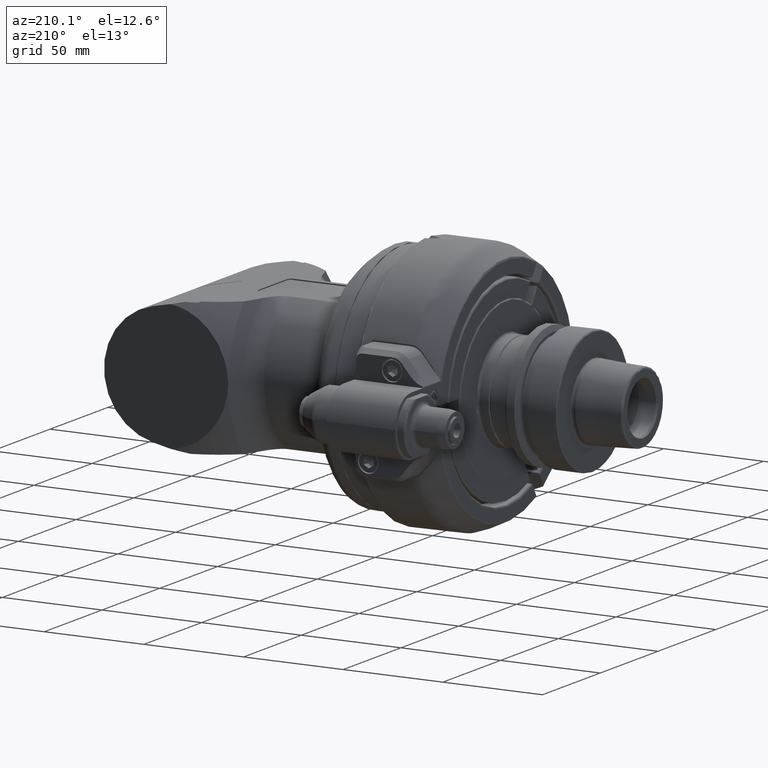
[diagram: clean part render]
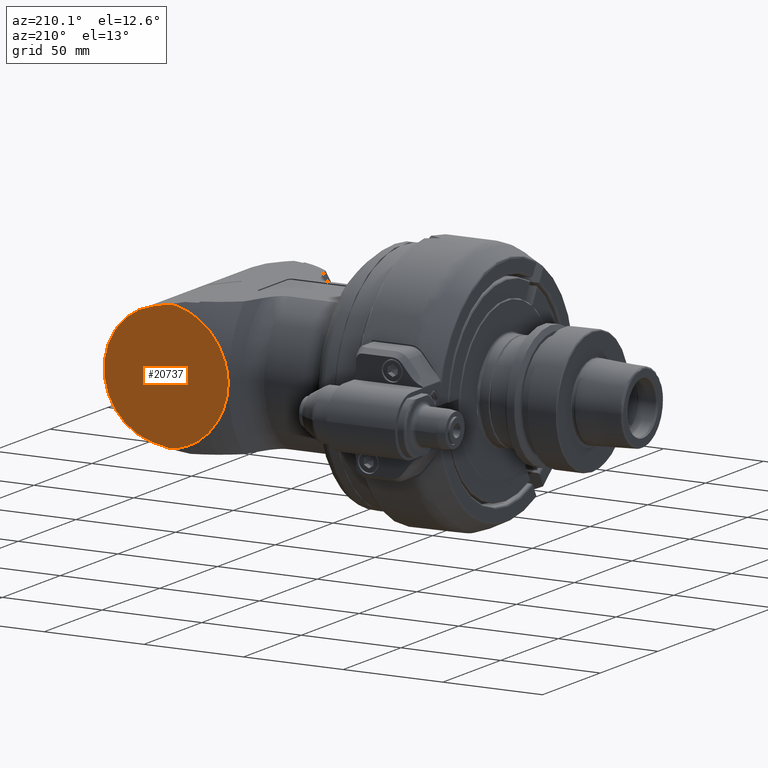
[diagram: same view with one face highlighted and labeled with its STEP entity id]
A machine part, auxiliary view. The second image highlights one B-rep face of the part: STEP entity #20737.
In plain terms, the highlighted planar face has unit normal (0, -1, 0).
Its self-contained STEP definition (entity closure, byte-faithful):
#312=B_SPLINE_CURVE_WITH_KNOTS('',3,(#31280,#31281,#31282,#31283,#31284,
#31285,#31286,#31287,#31288,#31289,#31290,#31291,#31292,#31293,#31294,#31295,
#31296,#31297,#31298,#31299,#31300,#31301,#31302,#31303,#31304),
 .UNSPECIFIED.,.F.,.F.,(4,3,3,3,3,3,3,3,4),(0.,0.992242057424706,1.98397289565595,
2.97519801507522,3.9659491329241,4.95628439029028,5.94628838695565,6.93607205721738,
7.92577241366975),.UNSPECIFIED.);
#315=B_SPLINE_CURVE_WITH_KNOTS('',3,(#31339,#31340,#31341,#31342,#31343,
#31344,#31345,#31346,#31347,#31348,#31349,#31350,#31351),.UNSPECIFIED.,
 .F.,.F.,(4,3,3,3,4),(0.,1.41641097025634,2.83277460562305,4.24912609322701,
5.66549765845377),.UNSPECIFIED.);
#320=B_SPLINE_CURVE_WITH_KNOTS('',3,(#31926,#31927,#31928,#31929,#31930,
#31931,#31932,#31933,#31934,#31935,#31936,#31937,#31938),.UNSPECIFIED.,
 .F.,.F.,(4,3,3,3,4),(0.,1.31722049980394,2.63442441966763,3.95161464611599,
5.26879464015376),.UNSPECIFIED.);
#324=B_SPLINE_CURVE_WITH_KNOTS('',3,(#32189,#32190,#32191,#32192,#32193,
#32194,#32195,#32196,#32197,#32198,#32199,#32200,#32201,#32202,#32203,#32204,
#32205,#32206,#32207,#32208,#32209,#32210,#32211,#32212,#32213,#32214,#32215,
#32216,#32217,#32218,#32219,#32220,#32221,#32222,#32223,#32224,#32225,#32226,
#32227,#32228,#32229,#32230,#32231,#32232,#32233,#32234,#32235,#32236,#32237,
#32238,#32239,#32240,#32241,#32242,#32243,#32244,#32245,#32246,#32247,#32248,
#32249,#32250,#32251,#32252,#32253,#32254,#32255,#32256,#32257,#32258),
 .UNSPECIFIED.,.F.,.F.,(4,3,3,3,3,3,3,3,3,3,3,3,3,3,3,3,3,3,3,3,3,3,3,4),
(0.,1.12416668223494,2.24736612673669,3.36951984996731,4.49064883436384,
5.61087896914794,6.73046692358963,7.85231083400751,8.97753050032318,10.1050528240918,
10.6693555182885,11.2338556627849,11.7984367940402,12.3629882135461,12.9274056815949,
13.4915921509215,14.0554585522845,14.6189246448477,15.1819199444126,15.7443847430724,
16.3062712319338,16.867544738392,17.4281850863751,17.9881880853116),
 .UNSPECIFIED.);
#328=B_SPLINE_CURVE_WITH_KNOTS('',3,(#32454,#32455,#32456,#32457,#32458,
#32459,#32460,#32461,#32462,#32463,#32464,#32465,#32466),.UNSPECIFIED.,
 .F.,.F.,(4,3,3,3,4),(0.,1.31721500405777,2.63441581820572,3.95160744192858,
5.26879464031165),.UNSPECIFIED.);
#336=B_SPLINE_CURVE_WITH_KNOTS('',3,(#32873,#32874,#32875,#32876,#32877,
#32878,#32879,#32880,#32881,#32882,#32883,#32884,#32885,#32886,#32887,#32888),
 .UNSPECIFIED.,.F.,.F.,(4,3,3,3,3,4),(0.,0.799060704593151,1.59807347417503,
3.19605656265595,4.79413502925788,6.39246658318003),.UNSPECIFIED.);
#337=B_SPLINE_CURVE_WITH_KNOTS('',3,(#32890,#32891,#32892,#32893,#32894,
#32895,#32896,#32897,#32898,#32899,#32900,#32901,#32902,#32903,#32904,#32905,
#32906,#32907,#32908,#32909,#32910,#32911,#32912,#32913,#32914),
 .UNSPECIFIED.,.F.,.F.,(4,3,3,3,3,3,3,3,4),(0.,0.989700356452083,1.97948402671316,
2.96948802337813,3.95982328074394,4.95057439859277,5.94179951801207,6.93353035624271,
7.92577241366874),.UNSPECIFIED.);
#338=B_SPLINE_CURVE_WITH_KNOTS('',3,(#32915,#32916,#32917,#32918,#32919,
#32920,#32921,#32922,#32923,#32924,#32925,#32926,#32927,#32928,#32929,#32930,
#32931,#32932,#32933,#32934,#32935,#32936,#32937,#32938,#32939,#32940,#32941,
#32942,#32943,#32944,#32945,#32946,#32947,#32948,#32949,#32950,#32951,#32952,
#32953,#32954,#32955,#32956,#32957,#32958,#32959,#32960,#32961,#32962,#32963,
#32964,#32965,#32966,#32967,#32968,#32969,#32970,#32971,#32972,#32973,#32974,
#32975,#32976,#32977,#32978,#32979,#32980,#32981,#32982,#32983,#32984),
 .UNSPECIFIED.,.F.,.F.,(4,3,3,3,3,3,3,3,3,3,3,3,3,3,3,3,3,3,3,3,3,3,3,4),
(0.,0.560002998936497,1.12064334691953,1.68191685337738,2.24380334223844,
2.80626814089812,3.36926344046314,3.93272953302629,4.49659593438952,5.06078240371644,
5.62519987176505,6.18975129127075,6.75433242252607,7.31883256702203,7.88313526121858,
9.01065758498716,10.1358772513027,11.2577211617207,12.3773091161624,13.4975392509463,
14.6186682353428,15.7408219585734,16.8640214030752,17.9881880853102),
 .UNSPECIFIED.);
#339=B_SPLINE_CURVE_WITH_KNOTS('',3,(#32986,#32987,#32988,#32989,#32990,
#32991,#32992,#32993,#32994,#32995,#32996,#32997,#32998,#32999,#33000,#33001),
 .UNSPECIFIED.,.F.,.F.,(4,3,3,3,3,4),(0.,1.59833155392217,3.19641002052498,
4.7943931090059,5.59340587858651,6.39246658318078),.UNSPECIFIED.);
#340=B_SPLINE_CURVE_WITH_KNOTS('',3,(#33002,#33003,#33004,#33005,#33006,
#33007,#33008,#33009,#33010,#33011,#33012,#33013,#33014),.UNSPECIFIED.,
 .F.,.F.,(4,3,3,3,4),(0.,1.41637156522673,2.83272305283394,4.24908668820071,
5.66549765845705),.UNSPECIFIED.);
#648=CIRCLE('',#21975,1824.94496184479);
#649=CIRCLE('',#21976,1824.94496190464);
#650=CIRCLE('',#21977,31.);
#2433=FACE_OUTER_BOUND('',#3330,.T.);
#3330=EDGE_LOOP('',(#13442,#13443,#13444,#13445,#13446,#13447,#13448,#13449,
#13450,#13451,#13452,#13453,#13454,#13455,#13456));
#4342=LINE('',#32870,#5837);
#4343=LINE('',#33018,#5838);
#5837=VECTOR('',#24719,1.);
#5838=VECTOR('',#24724,1.);
#7282=VERTEX_POINT('',#31277);
#7283=VERTEX_POINT('',#31279);
#7287=VERTEX_POINT('',#31336);
#7288=VERTEX_POINT('',#31338);
#7300=VERTEX_POINT('',#31923);
#7301=VERTEX_POINT('',#31925);
#7353=VERTEX_POINT('',#32047);
#7371=VERTEX_POINT('',#32453);
#7392=VERTEX_POINT('',#32868);
#7393=VERTEX_POINT('',#32869);
#7394=VERTEX_POINT('',#32872);
#7395=VERTEX_POINT('',#32889);
#7396=VERTEX_POINT('',#32985);
#7397=VERTEX_POINT('',#33015);
#7398=VERTEX_POINT('',#33017);
#9884=EDGE_CURVE('',#7282,#7283,#312,.T.);
#9889=EDGE_CURVE('',#7287,#7288,#315,.T.);
#9902=EDGE_CURVE('',#7300,#7301,#320,.T.);
#9962=EDGE_CURVE('',#7283,#7353,#324,.T.);
#9978=EDGE_CURVE('',#7288,#7371,#328,.T.);
#10004=EDGE_CURVE('',#7392,#7393,#4342,.T.);
#10005=EDGE_CURVE('',#7371,#7393,#648,.T.);
#10006=EDGE_CURVE('',#7394,#7287,#336,.T.);
#10007=EDGE_CURVE('',#7395,#7394,#337,.T.);
#10008=EDGE_CURVE('',#7353,#7395,#338,.T.);
#10009=EDGE_CURVE('',#7396,#7282,#339,.T.);
#10010=EDGE_CURVE('',#7301,#7396,#340,.T.);
#10011=EDGE_CURVE('',#7397,#7300,#649,.T.);
#10012=EDGE_CURVE('',#7397,#7398,#4343,.T.);
#10013=EDGE_CURVE('',#7398,#7392,#650,.T.);
#13442=ORIENTED_EDGE('',*,*,#10004,.T.);
#13443=ORIENTED_EDGE('',*,*,#10005,.F.);
#13444=ORIENTED_EDGE('',*,*,#9978,.F.);
#13445=ORIENTED_EDGE('',*,*,#9889,.F.);
#13446=ORIENTED_EDGE('',*,*,#10006,.F.);
#13447=ORIENTED_EDGE('',*,*,#10007,.F.);
#13448=ORIENTED_EDGE('',*,*,#10008,.F.);
#13449=ORIENTED_EDGE('',*,*,#9962,.F.);
#13450=ORIENTED_EDGE('',*,*,#9884,.F.);
#13451=ORIENTED_EDGE('',*,*,#10009,.F.);
#13452=ORIENTED_EDGE('',*,*,#10010,.F.);
#13453=ORIENTED_EDGE('',*,*,#9902,.F.);
#13454=ORIENTED_EDGE('',*,*,#10011,.F.);
#13455=ORIENTED_EDGE('',*,*,#10012,.T.);
#13456=ORIENTED_EDGE('',*,*,#10013,.T.);
#20132=PLANE('',#21974);
#20737=ADVANCED_FACE('',(#2433),#20132,.F.);
#21974=AXIS2_PLACEMENT_3D('',#32867,#24717,#24718);
#21975=AXIS2_PLACEMENT_3D('',#32871,#24720,#24721);
#21976=AXIS2_PLACEMENT_3D('',#33016,#24722,#24723);
#21977=AXIS2_PLACEMENT_3D('',#33019,#24725,#24726);
#24717=DIRECTION('center_axis',(1.68128734625305E-15,-1.,0.));
#24718=DIRECTION('ref_axis',(-1.,-1.68128734625305E-15,0.));
#24719=DIRECTION('',(-0.978147600733806,-1.63643209284756E-15,-0.207911690817759));
#24720=DIRECTION('center_axis',(-3.63308687955933E-12,-1.,-2.2626754111478E-11));
#24721=DIRECTION('ref_axis',(-0.157420699239301,2.29165606215824E-11,-0.987531631620481));
#24722=DIRECTION('center_axis',(3.63308687970333E-12,-1.,-2.26267541123768E-11));
#24723=DIRECTION('ref_axis',(-0.15964979394447,-2.29165606208308E-11,0.987173714851387));
#24724=DIRECTION('',(0.978147600733806,1.66648140541229E-15,-0.207911690817759));
#24725=DIRECTION('center_axis',(0.,1.,0.));
#24726=DIRECTION('ref_axis',(1.,0.,0.));
#31277=CARTESIAN_POINT('',(256.759249423327,49.0000000000001,23.2082513592934));
#31279=CARTESIAN_POINT('',(251.759249422787,49.0000000000001,17.0656076727776));
#31280=CARTESIAN_POINT('Ctrl Pts',(256.759249422705,49.0000000000001,23.2082513587644));
#31281=CARTESIAN_POINT('Ctrl Pts',(256.535527466949,49.0000000000001,22.9645350740794));
#31282=CARTESIAN_POINT('Ctrl Pts',(256.31342267198,49.0000000000001,22.7194457408125));
#31283=CARTESIAN_POINT('Ctrl Pts',(256.093039643019,49.0000000000001,22.4729319585992));
#31284=CARTESIAN_POINT('Ctrl Pts',(255.872656626423,49.0000000000001,22.2264181902188));
#31285=CARTESIAN_POINT('Ctrl Pts',(255.653995238817,49.0000000000001,21.9784798882552));
#31286=CARTESIAN_POINT('Ctrl Pts',(255.437165817947,49.0000000000001,21.7290611347212));
#31287=CARTESIAN_POINT('Ctrl Pts',(255.220336422401,49.0000000000001,21.4796424103183));
#31288=CARTESIAN_POINT('Ctrl Pts',(255.005338837701,49.0000000000001,21.2287431295281));
#31289=CARTESIAN_POINT('Ctrl Pts',(254.792290093706,49.0000000000001,20.9763028795739));
#31290=CARTESIAN_POINT('Ctrl Pts',(254.579241390291,49.0000000000001,20.7238626777024));
#31291=CARTESIAN_POINT('Ctrl Pts',(254.368141351454,49.0000000000001,20.4698813780032));
#31292=CARTESIAN_POINT('Ctrl Pts',(254.159114775289,49.0000000000001,20.2142941856369));
#31293=CARTESIAN_POINT('Ctrl Pts',(253.950088257324,49.0000000000001,19.9587070644338));
#31294=CARTESIAN_POINT('Ctrl Pts',(253.743135004584,49.0000000000001,19.7015138939322));
#31295=CARTESIAN_POINT('Ctrl Pts',(253.538388775431,49.0000000000001,19.4426457214033));
#31296=CARTESIAN_POINT('Ctrl Pts',(253.333642624469,49.0000000000001,19.1837776477357));
#31297=CARTESIAN_POINT('Ctrl Pts',(253.131103277739,49.0000000000001,18.9232343829439));
#31298=CARTESIAN_POINT('Ctrl Pts',(252.930914756033,49.0000000000001,18.6609431766895));
#31299=CARTESIAN_POINT('Ctrl Pts',(252.73072633482,49.0000000000001,18.3986521021031));
#31300=CARTESIAN_POINT('Ctrl Pts',(252.532888497481,49.0000000000001,18.1346128596879));
#31301=CARTESIAN_POINT('Ctrl Pts',(252.337556926708,49.0000000000001,17.8687494255035));
#31302=CARTESIAN_POINT('Ctrl Pts',(252.142225480837,49.0000000000001,17.6028861613213));
#31303=CARTESIAN_POINT('Ctrl Pts',(251.94940003978,49.0000000000001,17.3351984369177));
#31304=CARTESIAN_POINT('Ctrl Pts',(251.759249422705,49.0000000000001,17.0656076726333));
#31336=CARTESIAN_POINT('',(261.759249422704,49.0000000000001,-27.189579349877));
#31338=CARTESIAN_POINT('',(266.759249424754,48.9999999998453,-29.8533396840817));
#31339=CARTESIAN_POINT('Ctrl Pts',(261.759249422705,49.0000000000001,-27.1895793498776));
#31340=CARTESIAN_POINT('Ctrl Pts',(262.172561089978,49.0000000000001,-27.4178296446101));
#31341=CARTESIAN_POINT('Ctrl Pts',(262.586789705108,49.0000000000001,-27.6443898025845));
#31342=CARTESIAN_POINT('Ctrl Pts',(263.00187297803,49.0000000000001,-27.8693559998758));
#31343=CARTESIAN_POINT('Ctrl Pts',(263.41695631773,49.0000000000001,-28.0943222333597));
#31344=CARTESIAN_POINT('Ctrl Pts',(263.832894458912,49.0000000000001,-28.317694493084));
#31345=CARTESIAN_POINT('Ctrl Pts',(264.249631646423,49.0000000000001,-28.5395611896263));
#31346=CARTESIAN_POINT('Ctrl Pts',(264.666368889143,49.0000000000001,-28.7614279155613));
#31347=CARTESIAN_POINT('Ctrl Pts',(265.083905300129,49.0000000000001,-28.9817890649466));
#31348=CARTESIAN_POINT('Ctrl Pts',(265.502190755154,49.0000000000001,-29.2007260558741));
#31349=CARTESIAN_POINT('Ctrl Pts',(265.9204762553,49.0000000000001,-29.4196630704191));
#31350=CARTESIAN_POINT('Ctrl Pts',(266.339510903322,49.0000000000001,-29.6371759131839));
#31351=CARTESIAN_POINT('Ctrl Pts',(266.759249428852,49.0000000000001,-29.8533396859382));
#31923=CARTESIAN_POINT('',(271.759249422666,48.9999999999671,31.5146293911545));
#31925=CARTESIAN_POINT('',(266.759249424754,48.999999999845,29.8533396840821));
#31926=CARTESIAN_POINT('Ctrl Pts',(271.759249422705,49.0000000000001,31.5146293910364));
#31927=CARTESIAN_POINT('Ctrl Pts',(271.341791488782,49.0000000000001,31.3785519289655));
#31928=CARTESIAN_POINT('Ctrl Pts',(270.924520221837,49.0000000000001,31.2419119603042));
#31929=CARTESIAN_POINT('Ctrl Pts',(270.507443701776,49.0000000000001,31.1046889211353));
#31930=CARTESIAN_POINT('Ctrl Pts',(270.090367184974,49.0000000000001,30.9674658830388));
#31931=CARTESIAN_POINT('Ctrl Pts',(269.673485408707,49.0000000000001,30.8296597794189));
#31932=CARTESIAN_POINT('Ctrl Pts',(269.256806945087,49.0000000000001,30.6912488502462));
#31933=CARTESIAN_POINT('Ctrl Pts',(268.840128485419,49.0000000000001,30.5528379223864));
#31934=CARTESIAN_POINT('Ctrl Pts',(268.423653331336,48.9999999999955,30.413822174462));
#31935=CARTESIAN_POINT('Ctrl Pts',(268.007390603605,48.9999999999955,30.2741785575436));
#31936=CARTESIAN_POINT('Ctrl Pts',(267.591127880655,48.9999999999955,30.1345349422288));
#31937=CARTESIAN_POINT('Ctrl Pts',(267.175077576126,49.0000000000001,29.9942634639148));
#31938=CARTESIAN_POINT('Ctrl Pts',(266.759249422705,49.0000000000001,29.8533396827725));
#32047=CARTESIAN_POINT('',(246.759249422705,49.0000000000001,2.18272629132729E-13));
#32189=CARTESIAN_POINT('Ctrl Pts',(251.759249422705,49.0000000000001,17.0656076726333));
#32190=CARTESIAN_POINT('Ctrl Pts',(251.573694570769,49.0000000000001,16.7398861844092));
#32191=CARTESIAN_POINT('Ctrl Pts',(251.391782378763,49.0000000000001,16.4122433251356));
#32192=CARTESIAN_POINT('Ctrl Pts',(251.213770994501,49.0000000000001,16.0826782143429));
#32193=CARTESIAN_POINT('Ctrl Pts',(251.035759621133,49.0000000000001,15.7531131237168));
#32194=CARTESIAN_POINT('Ctrl Pts',(250.861648982009,49.0000000000001,15.4216256175999));
#32195=CARTESIAN_POINT('Ctrl Pts',(250.691701892405,49.0000000000001,15.0882130050983));
#32196=CARTESIAN_POINT('Ctrl Pts',(250.521754822582,49.0000000000001,14.7548004314025));
#32197=CARTESIAN_POINT('Ctrl Pts',(250.355971240007,49.0000000000001,14.4194625767329));
#32198=CARTESIAN_POINT('Ctrl Pts',(250.194618699517,49.0000000000001,14.0821956955995));
#32199=CARTESIAN_POINT('Ctrl Pts',(250.033266187459,49.0000000000001,13.7449288738984));
#32200=CARTESIAN_POINT('Ctrl Pts',(249.876344672522,49.0000000000001,13.4057328464321));
#32201=CARTESIAN_POINT('Ctrl Pts',(249.724126358761,49.0000000000001,13.0646036986297));
#32202=CARTESIAN_POINT('Ctrl Pts',(249.571908081254,49.0000000000001,12.7234746320761));
#32203=CARTESIAN_POINT('Ctrl Pts',(249.424392984086,49.0000000000001,12.3804122701317));
#32204=CARTESIAN_POINT('Ctrl Pts',(249.281857612149,49.0000000000001,12.0354135248791));
#32205=CARTESIAN_POINT('Ctrl Pts',(249.139318873109,49.0000000000001,11.6904066297488));
#32206=CARTESIAN_POINT('Ctrl Pts',(249.00177380815,49.0000000000001,11.3434990532662));
#32207=CARTESIAN_POINT('Ctrl Pts',(248.869463843851,49.0000000000001,10.9945875615771));
#32208=CARTESIAN_POINT('Ctrl Pts',(248.737115854198,49.0000000000001,10.6455757941211));
#32209=CARTESIAN_POINT('Ctrl Pts',(248.609749909168,48.9999999999959,10.2938742373527));
#32210=CARTESIAN_POINT('Ctrl Pts',(248.487798704334,48.9999999999959,9.9397104280545));
#32211=CARTESIAN_POINT('Ctrl Pts',(248.365847760101,48.9999999999959,9.58554737557985));
#32212=CARTESIAN_POINT('Ctrl Pts',(248.249312516417,49.0000000000001,9.22892317924162));
#32213=CARTESIAN_POINT('Ctrl Pts',(248.138605432078,49.0000000000001,8.87009700466617));
#32214=CARTESIAN_POINT('Ctrl Pts',(248.027898543119,49.0000000000001,8.51127146335945));
#32215=CARTESIAN_POINT('Ctrl Pts',(247.923020867411,49.0000000000001,8.1502454844452));
#32216=CARTESIAN_POINT('Ctrl Pts',(247.824354909074,49.0000000000001,7.78730800389589));
#32217=CARTESIAN_POINT('Ctrl Pts',(247.77502200759,49.0000000000001,7.60583954937813));
#32218=CARTESIAN_POINT('Ctrl Pts',(247.72724158005,49.0000000000001,7.42389395040086));
#32219=CARTESIAN_POINT('Ctrl Pts',(247.6810578882,49.0000000000001,7.24151002579758));
#32220=CARTESIAN_POINT('Ctrl Pts',(247.634874203224,49.0000000000001,7.05912612834544));
#32221=CARTESIAN_POINT('Ctrl Pts',(247.590287288387,49.0000000000001,6.87630397679033));
#32222=CARTESIAN_POINT('Ctrl Pts',(247.547338621794,49.0000000000001,6.69308391525984));
#32223=CARTESIAN_POINT('Ctrl Pts',(247.504389960058,49.0000000000001,6.50986387444197));
#32224=CARTESIAN_POINT('Ctrl Pts',(247.463079580359,49.0000000000001,6.32624600330171));
#32225=CARTESIAN_POINT('Ctrl Pts',(247.423445889854,49.0000000000001,6.14227199069927));
#32226=CARTESIAN_POINT('Ctrl Pts',(247.383812202254,49.0000000000001,5.95829799158183));
#32227=CARTESIAN_POINT('Ctrl Pts',(247.345855236309,49.0000000000001,5.77396793869538));
#32228=CARTESIAN_POINT('Ctrl Pts',(247.30961005908,49.0000000000001,5.58932465000286));
#32229=CARTESIAN_POINT('Ctrl Pts',(247.273364882913,49.0000000000001,5.40468136672388));
#32230=CARTESIAN_POINT('Ctrl Pts',(247.238831525873,49.0000000000001,5.21972494308868));
#32231=CARTESIAN_POINT('Ctrl Pts',(247.206041470326,49.0000000000001,5.03449907371436));
#32232=CARTESIAN_POINT('Ctrl Pts',(247.173251414151,49.0000000000001,4.84927320079247));
#32233=CARTESIAN_POINT('Ctrl Pts',(247.142204687088,49.0000000000001,4.66377798484938));
#32234=CARTESIAN_POINT('Ctrl Pts',(247.112928973486,49.0000000000001,4.47805770681237));
#32235=CARTESIAN_POINT('Ctrl Pts',(247.083653257767,49.0000000000001,4.29233741534087));
#32236=CARTESIAN_POINT('Ctrl Pts',(247.056148579593,49.0000000000001,4.10639217105215));
#32237=CARTESIAN_POINT('Ctrl Pts',(247.030438650118,49.0000000000001,3.9202665126592));
#32238=CARTESIAN_POINT('Ctrl Pts',(247.004728717279,49.0000000000001,3.73414082990551));
#32239=CARTESIAN_POINT('Ctrl Pts',(246.980813552987,48.9999999999974,3.54783484812965));
#32240=CARTESIAN_POINT('Ctrl Pts',(246.958712764993,48.9999999999974,3.36139299744608));
#32241=CARTESIAN_POINT('Ctrl Pts',(246.936611972729,48.9999999999974,3.17495111073414));
#32242=CARTESIAN_POINT('Ctrl Pts',(246.916325571705,48.9999999999991,2.98837347459569));
#32243=CARTESIAN_POINT('Ctrl Pts',(246.897868987628,48.9999999999991,2.80170400903912));
#32244=CARTESIAN_POINT('Ctrl Pts',(246.879412398729,48.9999999999991,2.61503449470562));
#32245=CARTESIAN_POINT('Ctrl Pts',(246.862785636254,48.9999999999998,2.42827327344653));
#32246=CARTESIAN_POINT('Ctrl Pts',(246.847999922801,48.9999999999998,2.24146331942315));
#32247=CARTESIAN_POINT('Ctrl Pts',(246.833214204408,48.9999999999998,2.05465330300065));
#32248=CARTESIAN_POINT('Ctrl Pts',(246.820269538595,49.,1.86779467788677));
#32249=CARTESIAN_POINT('Ctrl Pts',(246.809172986614,49.,1.6809290072542));
#32250=CARTESIAN_POINT('Ctrl Pts',(246.798076430067,49.,1.49406325976114));
#32251=CARTESIAN_POINT('Ctrl Pts',(246.788827984695,49.0000000000001,1.30719059071518));
#32252=CARTESIAN_POINT('Ctrl Pts',(246.781430659261,49.0000000000001,1.12035066217592));
#32253=CARTESIAN_POINT('Ctrl Pts',(246.774033330181,49.0000000000001,0.933510641561858));
#32254=CARTESIAN_POINT('Ctrl Pts',(246.768487112033,49.0000000000001,0.746703483518659));
#32255=CARTESIAN_POINT('Ctrl Pts',(246.764791140059,49.0000000000001,0.559966439572724));
#32256=CARTESIAN_POINT('Ctrl Pts',(246.761095165949,49.0000000000001,0.373229287696936));
#32257=CARTESIAN_POINT('Ctrl Pts',(246.759249422705,49.0000000000001,0.186562368226569));
#32258=CARTESIAN_POINT('Ctrl Pts',(246.759249422705,49.0000000000001,2.53295991822518E-13));
#32453=CARTESIAN_POINT('',(271.759249422674,48.9999999999671,-31.5146293911559));
#32454=CARTESIAN_POINT('Ctrl Pts',(266.759249422705,49.0000000000001,-29.8533396827725));
#32455=CARTESIAN_POINT('Ctrl Pts',(267.175092620346,49.0000000000001,-29.9942685623872));
#32456=CARTESIAN_POINT('Ctrl Pts',(267.591153929647,48.999999999964,-30.1345437181778));
#32457=CARTESIAN_POINT('Ctrl Pts',(268.007423795624,48.999999999964,-30.2741896925901));
#32458=CARTESIAN_POINT('Ctrl Pts',(268.423693668284,48.999999999964,-30.4138356692446));
#32459=CARTESIAN_POINT('Ctrl Pts',(268.840172105428,49.0000000000001,-30.5528524584987));
#32460=CARTESIAN_POINT('Ctrl Pts',(269.256850217836,49.0000000000001,-30.6912632244481));
#32461=CARTESIAN_POINT('Ctrl Pts',(269.673528336167,49.0000000000001,-30.8296739923653));
#32462=CARTESIAN_POINT('Ctrl Pts',(270.090406136802,49.0000000000001,-30.9674787313702));
#32463=CARTESIAN_POINT('Ctrl Pts',(270.507475335165,49.0000000000001,-31.104699328888));
#32464=CARTESIAN_POINT('Ctrl Pts',(270.924544538783,49.0000000000001,-31.2419199281346));
#32465=CARTESIAN_POINT('Ctrl Pts',(271.341805146423,49.0000000000001,-31.3785563809041));
#32466=CARTESIAN_POINT('Ctrl Pts',(271.759249422783,49.0000000000001,-31.5146293910618));
#32867=CARTESIAN_POINT('Origin',(253.918438999999,49.0000000000001,-60.0000024));
#32868=CARTESIAN_POINT('',(284.508359415351,49.0000000000001,-30.322575622748));
#32869=CARTESIAN_POINT('',(275.827224575414,48.9999999999998,-32.1678077957195));
#32870=CARTESIAN_POINT('',(0.,48.9999999999997,-90.7966942664538));
#32871=CARTESIAN_POINT('Origin',(563.11133654226,48.9999999581786,1770.02306799244));
#32872=CARTESIAN_POINT('',(256.759249422705,48.999999999828,-23.2082513591278));
#32873=CARTESIAN_POINT('Ctrl Pts',(256.759249422705,49.0000000000001,-23.2082513587644));
#32874=CARTESIAN_POINT('Ctrl Pts',(256.962173590282,49.0000000000001,-23.38079661949));
#32875=CARTESIAN_POINT('Ctrl Pts',(257.165863564717,49.0000000000001,-23.55242174772));
#32876=CARTESIAN_POINT('Ctrl Pts',(257.370281854737,49.0000000000001,-23.7231622829798));
#32877=CARTESIAN_POINT('Ctrl Pts',(257.574700173173,49.0000000000001,-23.8939028419739));
#32878=CARTESIAN_POINT('Ctrl Pts',(257.779846849598,49.0000000000001,-24.0637588228408));
#32879=CARTESIAN_POINT('Ctrl Pts',(257.985687152807,49.0000000000001,-24.2327640393348));
#32880=CARTESIAN_POINT('Ctrl Pts',(258.397367868868,49.0000000000001,-24.5707745623443));
#32881=CARTESIAN_POINT('Ctrl Pts',(258.811821095612,49.0000000000001,-24.9053837615343));
#32882=CARTESIAN_POINT('Ctrl Pts',(259.228797656678,49.0000000000001,-25.2368422210266));
#32883=CARTESIAN_POINT('Ctrl Pts',(259.645774533929,49.0000000000001,-25.5683009318567));
#32884=CARTESIAN_POINT('Ctrl Pts',(260.06527574528,49.0000000000001,-25.8966091934982));
#32885=CARTESIAN_POINT('Ctrl Pts',(260.48708488004,49.0000000000001,-26.2219934095172));
#32886=CARTESIAN_POINT('Ctrl Pts',(260.908894244772,49.0000000000001,-26.5473778029374));
#32887=CARTESIAN_POINT('Ctrl Pts',(261.333012346475,49.0000000000001,-26.8698383550934));
#32888=CARTESIAN_POINT('Ctrl Pts',(261.759249422705,49.0000000000001,-27.1895793498776));
#32889=CARTESIAN_POINT('',(251.759249422705,49.0000000000001,-17.0656076726335));
#32890=CARTESIAN_POINT('Ctrl Pts',(251.759249422705,49.0000000000001,-17.0656076726333));
#32891=CARTESIAN_POINT('Ctrl Pts',(251.94940003978,49.0000000000001,-17.3351984369177));
#32892=CARTESIAN_POINT('Ctrl Pts',(252.142225480837,49.0000000000001,-17.6028861613215));
#32893=CARTESIAN_POINT('Ctrl Pts',(252.337556926708,49.0000000000001,-17.8687494255035));
#32894=CARTESIAN_POINT('Ctrl Pts',(252.532888497475,49.0000000000001,-18.1346128596787));
#32895=CARTESIAN_POINT('Ctrl Pts',(252.730726334813,49.0000000000001,-18.398652102094));
#32896=CARTESIAN_POINT('Ctrl Pts',(252.930914756033,49.0000000000001,-18.6609431766895));
#32897=CARTESIAN_POINT('Ctrl Pts',(253.131103277745,49.0000000000001,-18.9232343829519));
#32898=CARTESIAN_POINT('Ctrl Pts',(253.333642624476,49.0000000000001,-19.1837776477434));
#32899=CARTESIAN_POINT('Ctrl Pts',(253.538388775431,49.0000000000001,-19.4426457214033));
#32900=CARTESIAN_POINT('Ctrl Pts',(253.743135004584,49.0000000000001,-19.7015138939321));
#32901=CARTESIAN_POINT('Ctrl Pts',(253.950088257324,49.0000000000001,-19.9587070644339));
#32902=CARTESIAN_POINT('Ctrl Pts',(254.159114775289,49.0000000000001,-20.2142941856369));
#32903=CARTESIAN_POINT('Ctrl Pts',(254.368141351449,49.0000000000001,-20.4698813779976));
#32904=CARTESIAN_POINT('Ctrl Pts',(254.579241390286,49.0000000000001,-20.7238626776967));
#32905=CARTESIAN_POINT('Ctrl Pts',(254.792290093706,49.0000000000001,-20.9763028795739));
#32906=CARTESIAN_POINT('Ctrl Pts',(255.005338837701,49.0000000000001,-21.2287431295281));
#32907=CARTESIAN_POINT('Ctrl Pts',(255.220336422401,49.0000000000001,-21.4796424103183));
#32908=CARTESIAN_POINT('Ctrl Pts',(255.437165817947,49.0000000000001,-21.7290611347211));
#32909=CARTESIAN_POINT('Ctrl Pts',(255.653995238821,49.0000000000001,-21.9784798882592));
#32910=CARTESIAN_POINT('Ctrl Pts',(255.872656626427,49.0000000000001,-22.2264181902229));
#32911=CARTESIAN_POINT('Ctrl Pts',(256.093039643019,49.0000000000001,-22.4729319585993));
#32912=CARTESIAN_POINT('Ctrl Pts',(256.313422671977,49.0000000000001,-22.7194457408092));
#32913=CARTESIAN_POINT('Ctrl Pts',(256.535527466946,49.0000000000001,-22.9645350740761));
#32914=CARTESIAN_POINT('Ctrl Pts',(256.759249422705,49.0000000000001,-23.2082513587643));
#32915=CARTESIAN_POINT('Ctrl Pts',(246.759249422705,49.0000000000001,2.53295991822518E-13));
#32916=CARTESIAN_POINT('Ctrl Pts',(246.759249422705,49.0000000000001,-0.186562368226081));
#32917=CARTESIAN_POINT('Ctrl Pts',(246.761095165949,49.0000000000001,-0.373229287696452));
#32918=CARTESIAN_POINT('Ctrl Pts',(246.764791140059,49.0000000000001,-0.559966439572242));
#32919=CARTESIAN_POINT('Ctrl Pts',(246.768487112033,49.0000000000001,-0.746703483518174));
#32920=CARTESIAN_POINT('Ctrl Pts',(246.774033330181,49.0000000000001,-0.9335106415614));
#32921=CARTESIAN_POINT('Ctrl Pts',(246.781430659261,49.0000000000001,-1.12035066217544));
#32922=CARTESIAN_POINT('Ctrl Pts',(246.788827984695,49.0000000000001,-1.30719059071471));
#32923=CARTESIAN_POINT('Ctrl Pts',(246.798076430067,49.,-1.49406325976069));
#32924=CARTESIAN_POINT('Ctrl Pts',(246.809172986614,49.,-1.68092900725374));
#32925=CARTESIAN_POINT('Ctrl Pts',(246.820269538595,49.,-1.86779467788634));
#32926=CARTESIAN_POINT('Ctrl Pts',(246.833214204408,48.9999999999998,-2.05465330300021));
#32927=CARTESIAN_POINT('Ctrl Pts',(246.847999922801,48.9999999999998,-2.24146331942271));
#32928=CARTESIAN_POINT('Ctrl Pts',(246.862785636254,48.9999999999998,-2.42827327344607));
#32929=CARTESIAN_POINT('Ctrl Pts',(246.879412398729,48.9999999999991,-2.61503449470524));
#32930=CARTESIAN_POINT('Ctrl Pts',(246.897868987628,48.9999999999991,-2.80170400903871));
#32931=CARTESIAN_POINT('Ctrl Pts',(246.916325571705,48.9999999999991,-2.98837347459532));
#32932=CARTESIAN_POINT('Ctrl Pts',(246.936611972729,48.9999999999974,-3.17495111073368));
#32933=CARTESIAN_POINT('Ctrl Pts',(246.958712764993,48.9999999999974,-3.36139299744567));
#32934=CARTESIAN_POINT('Ctrl Pts',(246.980813552987,48.9999999999974,-3.54783484812856));
#32935=CARTESIAN_POINT('Ctrl Pts',(247.004728717279,49.0000000000001,-3.73414082990446));
#32936=CARTESIAN_POINT('Ctrl Pts',(247.030438650118,49.0000000000001,-3.92026651265882));
#32937=CARTESIAN_POINT('Ctrl Pts',(247.056148579593,49.0000000000001,-4.10639217105258));
#32938=CARTESIAN_POINT('Ctrl Pts',(247.083653257767,49.0000000000001,-4.29233741534121));
#32939=CARTESIAN_POINT('Ctrl Pts',(247.112928973486,49.0000000000001,-4.478057706812));
#32940=CARTESIAN_POINT('Ctrl Pts',(247.142204687088,49.0000000000001,-4.66377798484982));
#32941=CARTESIAN_POINT('Ctrl Pts',(247.173251414151,49.0000000000001,-4.84927320079296));
#32942=CARTESIAN_POINT('Ctrl Pts',(247.206041470326,49.0000000000001,-5.03449907371401));
#32943=CARTESIAN_POINT('Ctrl Pts',(247.238831525873,49.0000000000001,-5.2197249430884));
#32944=CARTESIAN_POINT('Ctrl Pts',(247.273364882913,49.0000000000001,-5.40468136672352));
#32945=CARTESIAN_POINT('Ctrl Pts',(247.30961005908,49.0000000000001,-5.58932465000252));
#32946=CARTESIAN_POINT('Ctrl Pts',(247.34585523631,49.0000000000001,-5.77396793869596));
#32947=CARTESIAN_POINT('Ctrl Pts',(247.383812202254,49.0000000000001,-5.95829799158242));
#32948=CARTESIAN_POINT('Ctrl Pts',(247.423445889853,49.0000000000001,-6.14227199069896));
#32949=CARTESIAN_POINT('Ctrl Pts',(247.463079580358,49.0000000000001,-6.32624600330138));
#32950=CARTESIAN_POINT('Ctrl Pts',(247.504389960057,49.0000000000001,-6.50986387444169));
#32951=CARTESIAN_POINT('Ctrl Pts',(247.547338621794,49.0000000000001,-6.69308391525954));
#32952=CARTESIAN_POINT('Ctrl Pts',(247.590287288387,49.0000000000001,-6.87630397679005));
#32953=CARTESIAN_POINT('Ctrl Pts',(247.634874203224,49.0000000000001,-7.05912612834515));
#32954=CARTESIAN_POINT('Ctrl Pts',(247.681057888199,49.0000000000001,-7.24151002579731));
#32955=CARTESIAN_POINT('Ctrl Pts',(247.72724158005,49.0000000000001,-7.42389395039975));
#32956=CARTESIAN_POINT('Ctrl Pts',(247.77502200759,49.0000000000001,-7.60583954937695));
#32957=CARTESIAN_POINT('Ctrl Pts',(247.824354909074,49.0000000000001,-7.78730800389562));
#32958=CARTESIAN_POINT('Ctrl Pts',(247.923020867411,49.0000000000001,-8.15024548444493));
#32959=CARTESIAN_POINT('Ctrl Pts',(248.027898543118,49.0000000000001,-8.51127146335914));
#32960=CARTESIAN_POINT('Ctrl Pts',(248.138605432078,49.0000000000001,-8.87009700466595));
#32961=CARTESIAN_POINT('Ctrl Pts',(248.249312516431,49.0000000000001,-9.22892317928642));
#32962=CARTESIAN_POINT('Ctrl Pts',(248.365847760116,48.9999999999959,-9.58554737562411));
#32963=CARTESIAN_POINT('Ctrl Pts',(248.487798704334,48.9999999999959,-9.93971042805429));
#32964=CARTESIAN_POINT('Ctrl Pts',(248.609749909168,48.9999999999959,-10.2938742373525));
#32965=CARTESIAN_POINT('Ctrl Pts',(248.737115854198,49.0000000000001,-10.645575794121));
#32966=CARTESIAN_POINT('Ctrl Pts',(248.869463843851,49.0000000000001,-10.994587561577));
#32967=CARTESIAN_POINT('Ctrl Pts',(249.001773808142,49.0000000000001,-11.3434990532467));
#32968=CARTESIAN_POINT('Ctrl Pts',(249.139318873102,49.0000000000001,-11.69040662973));
#32969=CARTESIAN_POINT('Ctrl Pts',(249.281857612149,49.0000000000001,-12.035413524879));
#32970=CARTESIAN_POINT('Ctrl Pts',(249.424392984086,49.0000000000001,-12.3804122701315));
#32971=CARTESIAN_POINT('Ctrl Pts',(249.571908081254,49.0000000000001,-12.723474632076));
#32972=CARTESIAN_POINT('Ctrl Pts',(249.724126358761,49.0000000000001,-13.0646036986296));
#32973=CARTESIAN_POINT('Ctrl Pts',(249.876344672524,49.0000000000001,-13.4057328464367));
#32974=CARTESIAN_POINT('Ctrl Pts',(250.033266187461,49.0000000000001,-13.744928873903));
#32975=CARTESIAN_POINT('Ctrl Pts',(250.194618699517,49.0000000000001,-14.0821956955994));
#32976=CARTESIAN_POINT('Ctrl Pts',(250.355971240005,49.0000000000001,-14.4194625767278));
#32977=CARTESIAN_POINT('Ctrl Pts',(250.521754822579,49.0000000000001,-14.7548004313974));
#32978=CARTESIAN_POINT('Ctrl Pts',(250.691701892405,49.0000000000001,-15.0882130050982));
#32979=CARTESIAN_POINT('Ctrl Pts',(250.861648982006,49.0000000000001,-15.4216256175947));
#32980=CARTESIAN_POINT('Ctrl Pts',(251.03575962113,49.0000000000001,-15.7531131237114));
#32981=CARTESIAN_POINT('Ctrl Pts',(251.213770994501,49.0000000000001,-16.0826782143429));
#32982=CARTESIAN_POINT('Ctrl Pts',(251.39178237876,49.0000000000001,-16.4122433251304));
#32983=CARTESIAN_POINT('Ctrl Pts',(251.573694570766,49.0000000000001,-16.739886184404));
#32984=CARTESIAN_POINT('Ctrl Pts',(251.759249422705,49.0000000000001,-17.0656076726333));
#32985=CARTESIAN_POINT('',(261.759249422704,49.0000000000001,27.1895793498769));
#32986=CARTESIAN_POINT('Ctrl Pts',(261.759249422705,49.0000000000001,27.1895793498776));
#32987=CARTESIAN_POINT('Ctrl Pts',(261.3330123465,49.0000000000001,26.869838355112));
#32988=CARTESIAN_POINT('Ctrl Pts',(260.908894244796,49.0000000000001,26.5473778029562));
#32989=CARTESIAN_POINT('Ctrl Pts',(260.48708488004,49.0000000000001,26.2219934095172));
#32990=CARTESIAN_POINT('Ctrl Pts',(260.06527574528,49.0000000000001,25.896609193498));
#32991=CARTESIAN_POINT('Ctrl Pts',(259.645774533929,49.0000000000001,25.5683009318567));
#32992=CARTESIAN_POINT('Ctrl Pts',(259.228797656678,49.0000000000001,25.2368422210266));
#32993=CARTESIAN_POINT('Ctrl Pts',(258.811821095654,49.0000000000001,24.9053837615673));
#32994=CARTESIAN_POINT('Ctrl Pts',(258.397367868909,49.0000000000001,24.5707745623777));
#32995=CARTESIAN_POINT('Ctrl Pts',(257.985687152807,49.0000000000001,24.2327640393348));
#32996=CARTESIAN_POINT('Ctrl Pts',(257.779846849598,49.0000000000001,24.0637588228409));
#32997=CARTESIAN_POINT('Ctrl Pts',(257.574700173173,49.0000000000001,23.893902841974));
#32998=CARTESIAN_POINT('Ctrl Pts',(257.370281854737,49.0000000000001,23.7231622829798));
#32999=CARTESIAN_POINT('Ctrl Pts',(257.165863564717,49.0000000000001,23.5524217477199));
#33000=CARTESIAN_POINT('Ctrl Pts',(256.962173590282,49.0000000000001,23.3807966194902));
#33001=CARTESIAN_POINT('Ctrl Pts',(256.759249422705,49.0000000000001,23.2082513587644));
#33002=CARTESIAN_POINT('Ctrl Pts',(266.759249428852,49.0000000000001,29.8533396859382));
#33003=CARTESIAN_POINT('Ctrl Pts',(266.339510903324,49.0000000000001,29.6371759131849));
#33004=CARTESIAN_POINT('Ctrl Pts',(265.920476255303,49.0000000000001,29.4196630704205));
#33005=CARTESIAN_POINT('Ctrl Pts',(265.502190755154,49.0000000000001,29.2007260558741));
#33006=CARTESIAN_POINT('Ctrl Pts',(265.083905300126,49.0000000000001,28.9817890649452));
#33007=CARTESIAN_POINT('Ctrl Pts',(264.66636888914,49.0000000000001,28.7614279155598));
#33008=CARTESIAN_POINT('Ctrl Pts',(264.249631646423,49.0000000000001,28.5395611896263));
#33009=CARTESIAN_POINT('Ctrl Pts',(263.832894458912,49.0000000000001,28.317694493084));
#33010=CARTESIAN_POINT('Ctrl Pts',(263.41695631773,49.0000000000001,28.0943222333596));
#33011=CARTESIAN_POINT('Ctrl Pts',(263.00187297803,49.0000000000001,27.8693559998759));
#33012=CARTESIAN_POINT('Ctrl Pts',(262.586789705104,49.0000000000001,27.6443898025823));
#33013=CARTESIAN_POINT('Ctrl Pts',(262.172561089974,49.0000000000001,27.4178296446078));
#33014=CARTESIAN_POINT('Ctrl Pts',(261.759249422705,49.0000000000001,27.1895793498777));
#33015=CARTESIAN_POINT('',(275.827224575414,49.0000000000001,32.1678077957188));
#33016=CARTESIAN_POINT('Origin',(563.111336550742,49.0000000418216,-1770.0230680517));
#33017=CARTESIAN_POINT('',(284.508359415351,49.0000000000001,30.322575622748));
#33018=CARTESIAN_POINT('',(0.,48.9999999999997,90.7966942664538));
#33019=CARTESIAN_POINT('Origin',(278.063097,49.0000000000001,-9.21763359581189E-15));